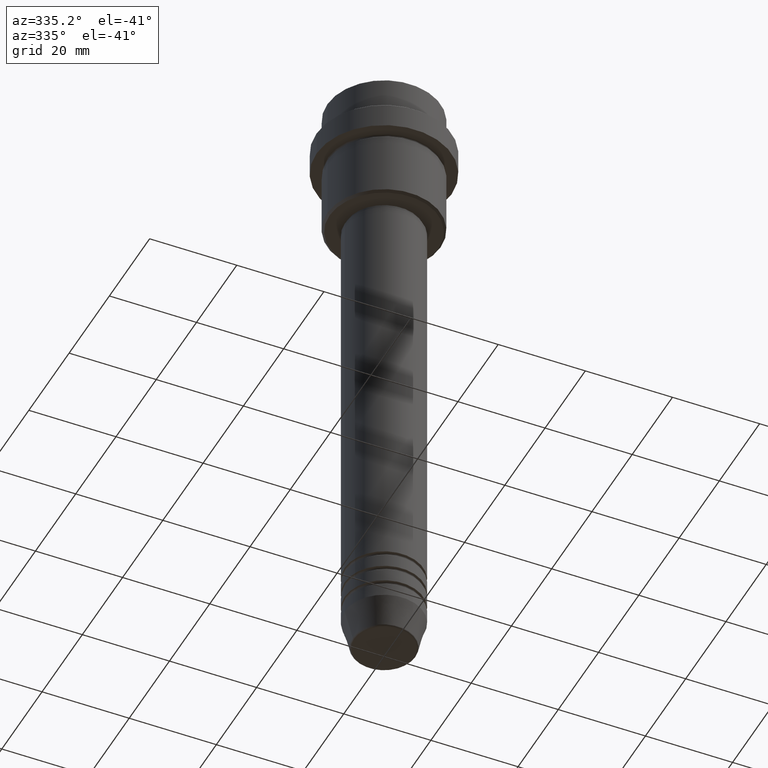
[diagram: clean part render]
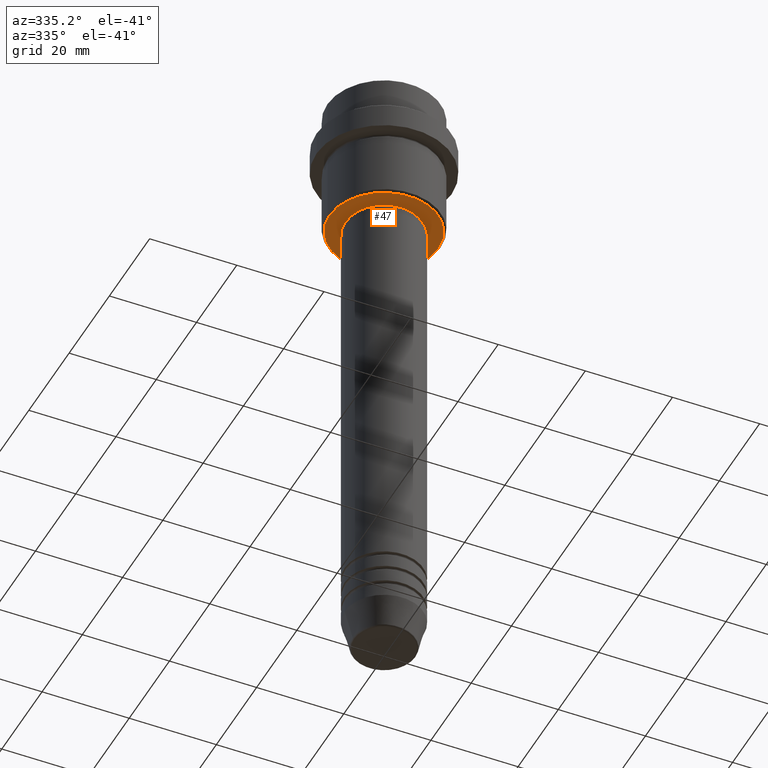
[diagram: same view with one face highlighted and labeled with its STEP entity id]
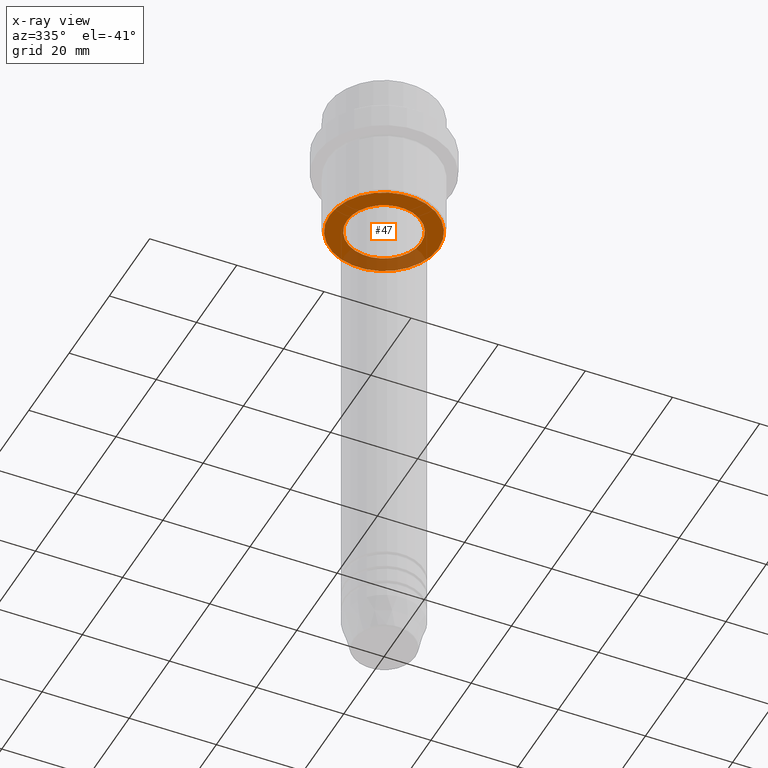
[diagram: x-ray of the same camera — body ghosted, the highlighted face saturated]
A machine part, auxiliary view. The second image highlights one B-rep face of the part: STEP entity #47.
The next image is the same camera in x-ray: the body ghosted, the highlighted face saturated — about 27% of this face is hidden behind the body in this view.
In plain terms, the highlighted planar face has unit normal (0, 0, -1).
Its self-contained STEP definition (entity closure, byte-faithful):
#44 = DIRECTION ( 'NONE',  ( -1.000000000000000000, 0.000000000000000000, 0.000000000000000000 ) ) ;
#47 = ADVANCED_FACE ( 'NONE', ( #560, #1104 ), #127, .T. ) ;
#78 = ORIENTED_EDGE ( 'NONE', *, *, #1325, .T. ) ;
#116 = CARTESIAN_POINT ( 'NONE',  ( 0.000000000000000000, 13.00000000000000000, -31.00000000000000000 ) ) ;
#127 = PLANE ( 'NONE',  #628 ) ;
#160 = CARTESIAN_POINT ( 'NONE',  ( 0.000000000000000000, 0.000000000000000000, -31.00000000000000000 ) ) ;
#167 = DIRECTION ( 'NONE',  ( -1.000000000000000000, 0.000000000000000000, 0.000000000000000000 ) ) ;
#170 = CIRCLE ( 'NONE', #1078, 8.499999999999994671 ) ;
#197 = VERTEX_POINT ( 'NONE', #270 ) ;
#223 = VERTEX_POINT ( 'NONE', #491 ) ;
#270 = CARTESIAN_POINT ( 'NONE',  ( 8.499999999999994671, 0.000000000000000000, -31.00000000000000000 ) ) ;
#273 = ORIENTED_EDGE ( 'NONE', *, *, #1315, .T. ) ;
#343 = DIRECTION ( 'NONE',  ( 0.000000000000000000, 0.000000000000000000, -1.000000000000000000 ) ) ;
#389 = DIRECTION ( 'NONE',  ( -0.000000000000000000, -0.000000000000000000, 1.000000000000000000 ) ) ;
#416 = DIRECTION ( 'NONE',  ( 1.000000000000000000, 0.000000000000000000, 0.000000000000000000 ) ) ;
#451 = CARTESIAN_POINT ( 'NONE',  ( -12.49999999999996980, 1.561424668912873336E-15, -31.00000000000000000 ) ) ;
#474 = DIRECTION ( 'NONE',  ( -1.000000000000000000, 0.000000000000000000, -0.000000000000000000 ) ) ;
#491 = CARTESIAN_POINT ( 'NONE',  ( -8.499999999999994671, 1.040949779275249745E-15, -31.00000000000000000 ) ) ;
#515 = ORIENTED_EDGE ( 'NONE', *, *, #756, .T. ) ;
#560 = FACE_OUTER_BOUND ( 'NONE', #1061, .T. ) ;
#587 = VERTEX_POINT ( 'NONE', #451 ) ;
#607 = AXIS2_PLACEMENT_3D ( 'NONE', #1341, #1231, #44 ) ;
#628 = AXIS2_PLACEMENT_3D ( 'NONE', #116, #998, #474 ) ;
#639 = VERTEX_POINT ( 'NONE', #1071 ) ;
#648 = AXIS2_PLACEMENT_3D ( 'NONE', #960, #1398, #416 ) ;
#734 = EDGE_LOOP ( 'NONE', ( #515, #78 ) ) ;
#745 = AXIS2_PLACEMENT_3D ( 'NONE', #1323, #343, #167 ) ;
#756 = EDGE_CURVE ( 'NONE', #197, #223, #990, .T. ) ;
#758 = ORIENTED_EDGE ( 'NONE', *, *, #1299, .T. ) ;
#960 = CARTESIAN_POINT ( 'NONE',  ( 0.000000000000000000, 0.000000000000000000, -31.00000000000000000 ) ) ;
#990 = CIRCLE ( 'NONE', #648, 8.499999999999994671 ) ;
#998 = DIRECTION ( 'NONE',  ( 0.000000000000000000, 0.000000000000000000, -1.000000000000000000 ) ) ;
#1061 = EDGE_LOOP ( 'NONE', ( #273, #758 ) ) ;
#1071 = CARTESIAN_POINT ( 'NONE',  ( 12.49999999999996980, 0.000000000000000000, -31.00000000000000000 ) ) ;
#1078 = AXIS2_PLACEMENT_3D ( 'NONE', #160, #389, #1254 ) ;
#1104 = FACE_BOUND ( 'NONE', #734, .T. ) ;
#1219 = CIRCLE ( 'NONE', #607, 12.49999999999996980 ) ;
#1231 = DIRECTION ( 'NONE',  ( 0.000000000000000000, 0.000000000000000000, -1.000000000000000000 ) ) ;
#1254 = DIRECTION ( 'NONE',  ( 1.000000000000000000, 0.000000000000000000, 0.000000000000000000 ) ) ;
#1299 = EDGE_CURVE ( 'NONE', #587, #639, #1410, .T. ) ;
#1315 = EDGE_CURVE ( 'NONE', #639, #587, #1219, .T. ) ;
#1323 = CARTESIAN_POINT ( 'NONE',  ( 0.000000000000000000, 0.000000000000000000, -31.00000000000000000 ) ) ;
#1325 = EDGE_CURVE ( 'NONE', #223, #197, #170, .T. ) ;
#1341 = CARTESIAN_POINT ( 'NONE',  ( 0.000000000000000000, 0.000000000000000000, -31.00000000000000000 ) ) ;
#1398 = DIRECTION ( 'NONE',  ( -0.000000000000000000, -0.000000000000000000, 1.000000000000000000 ) ) ;
#1410 = CIRCLE ( 'NONE', #745, 12.49999999999996980 ) ;